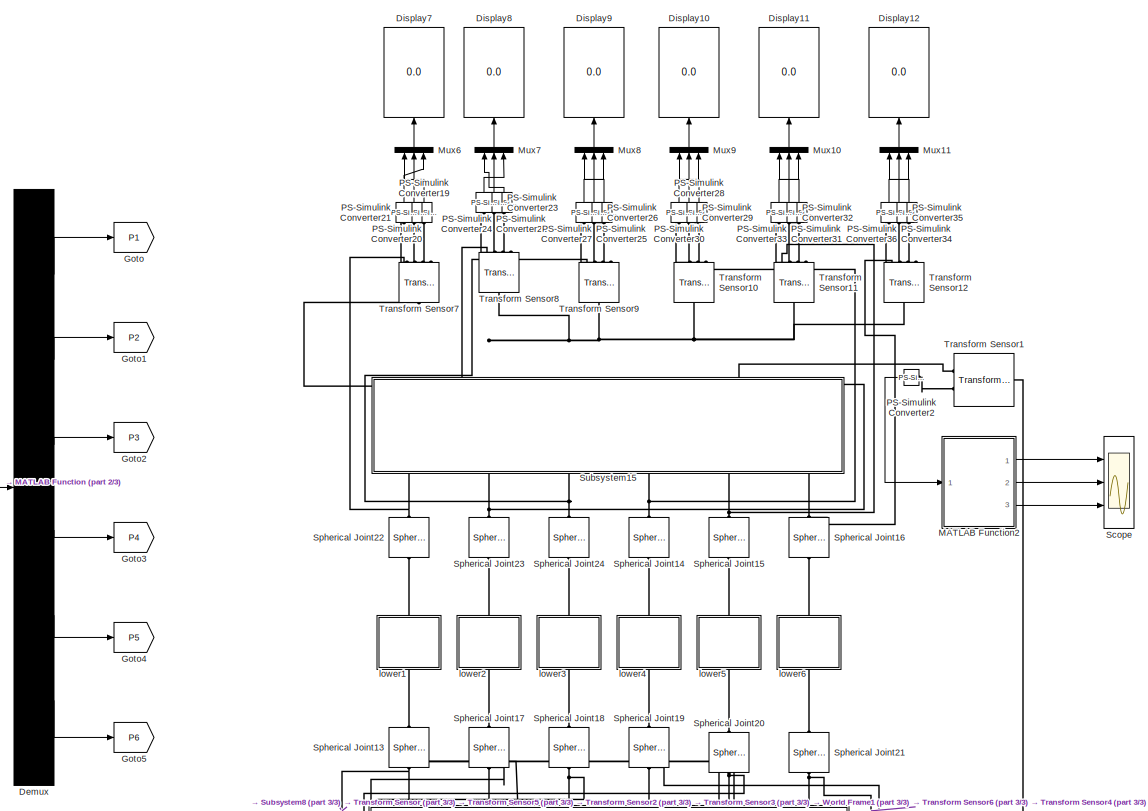
[diagram: root canvas - part 1/3, top right region]
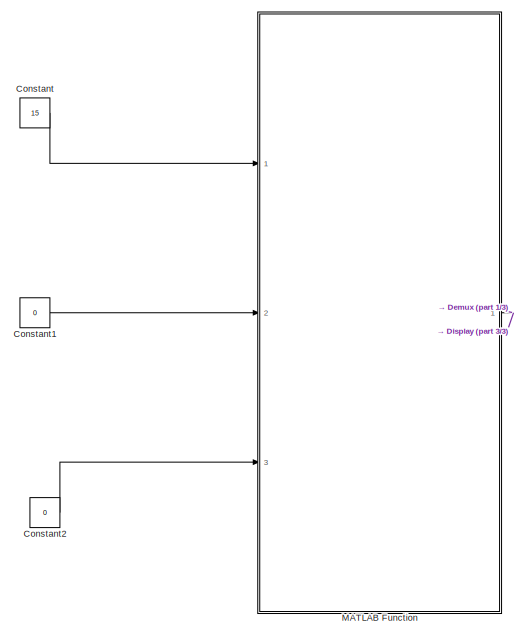
[diagram: root canvas - part 2/3, middle left region]
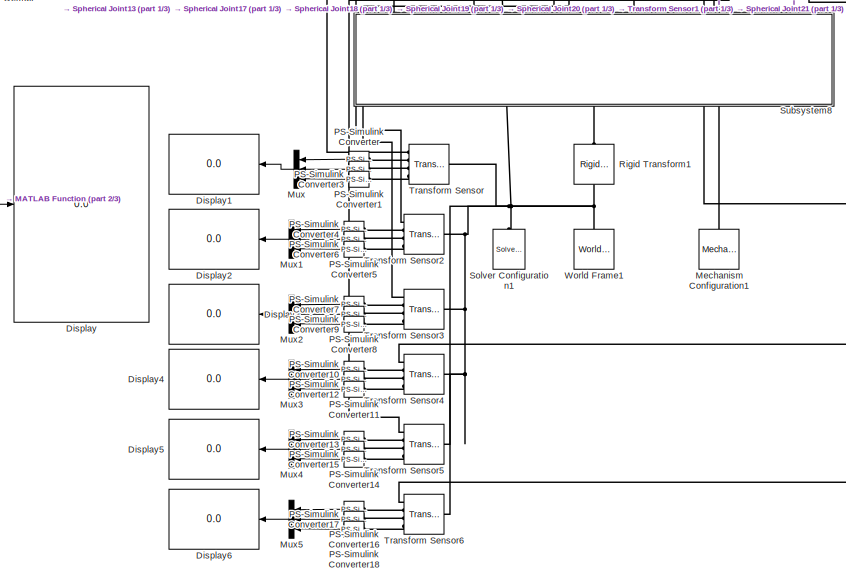
[diagram: root canvas - part 3/3, bottom center region]
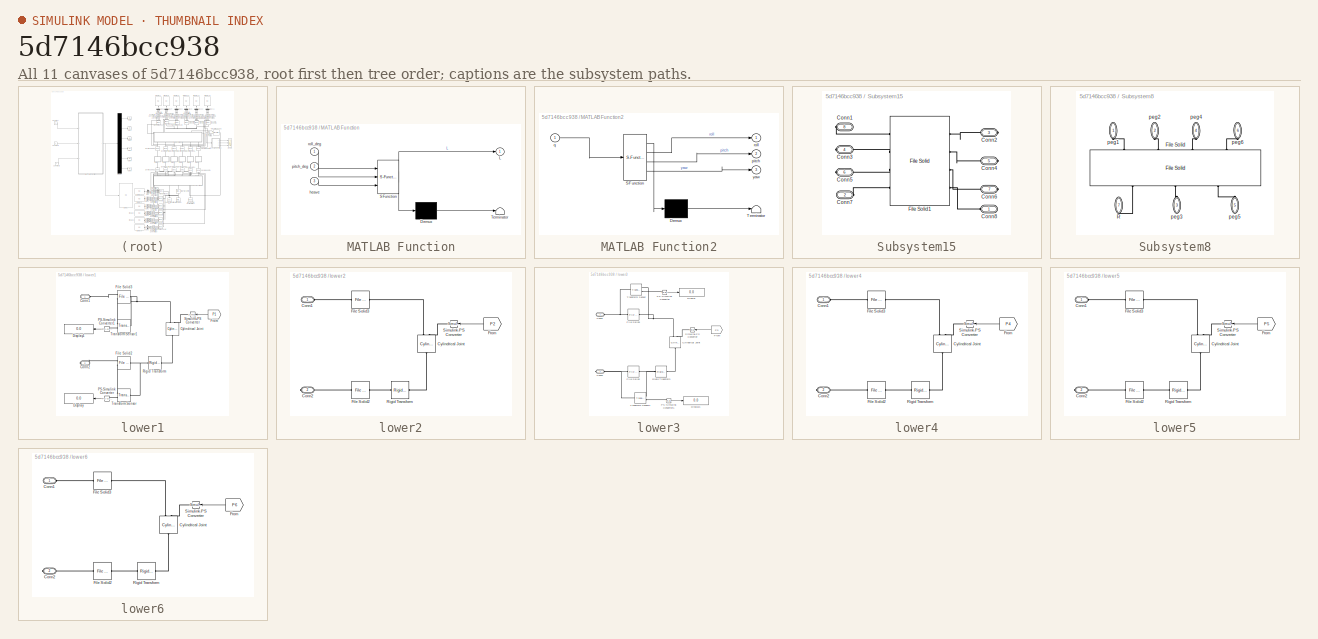
[diagram: thumbnail index - all 11 canvases of the model, root first then tree order]
MODEL slx_5d7146bcc938
KIND model
CONFIG AbsTol = 1e-3
CONFIG EnableMultiTasking = on
CONFIG FixedStep = auto
CONFIG MaxStep = auto
CONFIG MinStep = auto
CONFIG RelTol = 1e-3
CONFIG SampleTimeConstraint = Unconstrained
CONFIG SolverName = VariableStepAuto
CONFIG StartTime = 0.0
CONFIG StopTime = 10.0
BLOCK [Constant] Constant
  Value = 15
BLOCK [Constant] Constant1
  Value = 0
BLOCK [Constant] Constant2
  Value = 0
BLOCK [Demux] Demux
  Outputs = 6
  Ports = [1, 6]
BLOCK [Display] Display
  Decimation = 1
  Ports = [1]
BLOCK [Display] Display1
  Decimation = 3
  NameLocation = top
  Ports = [1]
BLOCK [Display] Display10
  Decimation = 3
  NameLocation = right
  Ports = [1]
BLOCK [Display] Display11
  Decimation = 3
  NameLocation = right
  Ports = [1]
BLOCK [Display] Display12
  Decimation = 3
  NameLocation = right
  Ports = [1]
BLOCK [Display] Display2
  Decimation = 3
  NameLocation = top
  Ports = [1]
BLOCK [Display] Display3
  Decimation = 3
  NameLocation = top
  Ports = [1]
BLOCK [Display] Display4
  Decimation = 3
  NameLocation = top
  Ports = [1]
BLOCK [Display] Display5
  Decimation = 3
  NameLocation = top
  Ports = [1]
BLOCK [Display] Display6
  Decimation = 3
  NameLocation = top
  Ports = [1]
BLOCK [Display] Display7
  Decimation = 3
  NameLocation = right
  Ports = [1]
BLOCK [Display] Display8
  Decimation = 3
  NameLocation = right
  Ports = [1]
BLOCK [Display] Display9
  Decimation = 3
  NameLocation = right
  Ports = [1]
BLOCK [Goto] Goto
  GotoTag = P1
  TagVisibility = global
BLOCK [Goto] Goto1
  GotoTag = P2
  TagVisibility = global
BLOCK [Goto] Goto2
  GotoTag = P3
  TagVisibility = global
BLOCK [Goto] Goto3
  GotoTag = P4
  TagVisibility = global
BLOCK [Goto] Goto4
  GotoTag = P5
  TagVisibility = global
BLOCK [Goto] Goto5
  GotoTag = P6
  TagVisibility = global
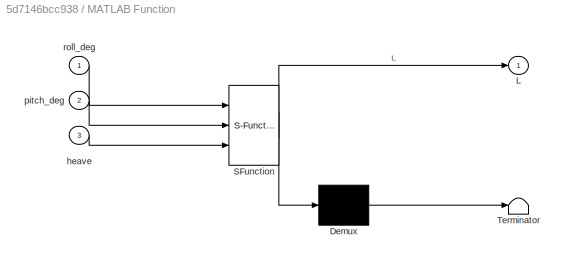
BLOCK [SubSystem] MATLAB Function
  ErrorFcn = Stateflow.Translate.translate
  PermitHierarchicalResolution = ExplicitOnly
  Ports = [3, 1]
  RequestExecContextInheritance = off
  SFBlockType = MATLAB Function
  TreatAsAtomicUnit = on
BLOCK [Demux] MATLAB Function/ Demux 
  Outputs = 1
  Ports = [1, 1]
BLOCK [S-Function] MATLAB Function/ SFunction 
  EnableBusSupport = on
  FunctionName = sf_sfun
  PortCounts = [3 2]
  Ports = [3, 2]
  SFcnIsStateOwnerBlock = off
  SFunctionDeploymentMode = off
  Tag = Stateflow S-Function 2
BLOCK [Terminator] MATLAB Function/ Terminator 
BLOCK [Outport] MATLAB Function/L
BLOCK [Inport] MATLAB Function/heave
  Port = 3
BLOCK [Inport] MATLAB Function/pitch_deg
  Port = 2
BLOCK [Inport] MATLAB Function/roll_deg
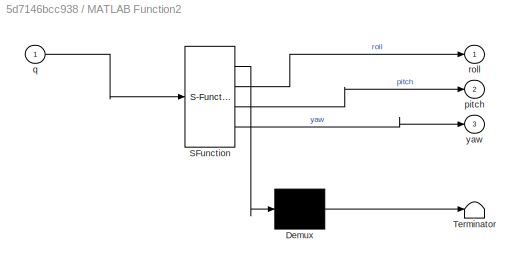
BLOCK [SubSystem] MATLAB Function2
  ErrorFcn = Stateflow.Translate.translate
  PermitHierarchicalResolution = ExplicitOnly
  Ports = [1, 3]
  RequestExecContextInheritance = off
  SFBlockType = MATLAB Function
  TreatAsAtomicUnit = on
BLOCK [Demux] MATLAB Function2/ Demux 
  Outputs = 1
  Ports = [1, 1]
BLOCK [S-Function] MATLAB Function2/ SFunction 
  EnableBusSupport = on
  FunctionName = sf_sfun
  PortCounts = [1 4]
  Ports = [1, 4]
  SFcnIsStateOwnerBlock = off
  SFunctionDeploymentMode = off
  Tag = Stateflow S-Function 3
BLOCK [Terminator] MATLAB Function2/ Terminator 
BLOCK [Outport] MATLAB Function2/pitch
  Port = 2
BLOCK [Inport] MATLAB Function2/q
BLOCK [Outport] MATLAB Function2/roll
BLOCK [Outport] MATLAB Function2/yaw
  Port = 3
BLOCK [Reference] Mechanism Configuration1  REF=sm_lib/Utilities/Mechanism
Configuration
  NameLocation = right
  Ports = [0, 0, 0, 0, 0, 0, 1]
  SourceBlock = sm_lib/Utilities/Mechanism\nConfiguration
  SourceProductBaseCode = MS
  SourceType = Mechanism\nConfiguration
BLOCK [Mux] Mux
  DisplayOption = bar
  Inputs = 3
  NameLocation = top
  Ports = [3, 1]
BLOCK [Mux] Mux1
  DisplayOption = bar
  Inputs = 3
  NameLocation = top
  Ports = [3, 1]
BLOCK [Mux] Mux10
  DisplayOption = bar
  Inputs = 3
  NameLocation = right
  Ports = [3, 1]
BLOCK [Mux] Mux11
  DisplayOption = bar
  Inputs = 3
  NameLocation = right
  Ports = [3, 1]
BLOCK [Mux] Mux2
  DisplayOption = bar
  Inputs = 3
  NameLocation = top
  Ports = [3, 1]
BLOCK [Mux] Mux3
  DisplayOption = bar
  Inputs = 3
  NameLocation = top
  Ports = [3, 1]
BLOCK [Mux] Mux4
  DisplayOption = bar
  Inputs = 3
  NameLocation = top
  Ports = [3, 1]
BLOCK [Mux] Mux5
  DisplayOption = bar
  Inputs = 3
  NameLocation = top
  Ports = [3, 1]
BLOCK [Mux] Mux6
  DisplayOption = bar
  Inputs = 3
  NameLocation = right
  Ports = [3, 1]
BLOCK [Mux] Mux7
  DisplayOption = bar
  Inputs = 3
  NameLocation = right
  Ports = [3, 1]
BLOCK [Mux] Mux8
  DisplayOption = bar
  Inputs = 3
  NameLocation = right
  Ports = [3, 1]
BLOCK [Mux] Mux9
  DisplayOption = bar
  Inputs = 3
  NameLocation = right
  Ports = [3, 1]
BLOCK [Reference] PS-Simulink Converter  REF=nesl_utility/PS-Simulink
Converter
  NameLocation = top
  Ports = [0, 1, 0, 0, 0, 1]
  SourceBlock = nesl_utility/PS-Simulink\nConverter
  SourceProductBaseCode = PW,SS
  SourceType = PS-Simulink\nConverter
BLOCK [Reference] PS-Simulink Converter1  REF=nesl_utility/PS-Simulink
Converter
  NameLocation = top
  Ports = [0, 1, 0, 0, 0, 1]
  SourceBlock = nesl_utility/PS-Simulink\nConverter
  SourceProductBaseCode = PW,SS
  SourceType = PS-Simulink\nConverter
BLOCK [Reference] PS-Simulink Converter10  REF=nesl_utility/PS-Simulink
Converter
  NameLocation = top
  Ports = [0, 1, 0, 0, 0, 1]
  SourceBlock = nesl_utility/PS-Simulink\nConverter
  SourceProductBaseCode = PW,SS
  SourceType = PS-Simulink\nConverter
BLOCK [Reference] PS-Simulink Converter11  REF=nesl_utility/PS-Simulink
Converter
  NameLocation = top
  Ports = [0, 1, 0, 0, 0, 1]
  SourceBlock = nesl_utility/PS-Simulink\nConverter
  SourceProductBaseCode = PW,SS
  SourceType = PS-Simulink\nConverter
BLOCK [Reference] PS-Simulink Converter12  REF=nesl_utility/PS-Simulink
Converter
  NameLocation = top
  Ports = [0, 1, 0, 0, 0, 1]
  SourceBlock = nesl_utility/PS-Simulink\nConverter
  SourceProductBaseCode = PW,SS
  SourceType = PS-Simulink\nConverter
BLOCK [Reference] PS-Simulink Converter13  REF=nesl_utility/PS-Simulink
Converter
  NameLocation = top
  Ports = [0, 1, 0, 0, 0, 1]
  SourceBlock = nesl_utility/PS-Simulink\nConverter
  SourceProductBaseCode = PW,SS
  SourceType = PS-Simulink\nConverter
BLOCK [Reference] PS-Simulink Converter14  REF=nesl_utility/PS-Simulink
Converter
  NameLocation = top
  Ports = [0, 1, 0, 0, 0, 1]
  SourceBlock = nesl_utility/PS-Simulink\nConverter
  SourceProductBaseCode = PW,SS
  SourceType = PS-Simulink\nConverter
BLOCK [Reference] PS-Simulink Converter15  REF=nesl_utility/PS-Simulink
Converter
  NameLocation = top
  Ports = [0, 1, 0, 0, 0, 1]
  SourceBlock = nesl_utility/PS-Simulink\nConverter
  SourceProductBaseCode = PW,SS
  SourceType = PS-Simulink\nConverter
BLOCK [Reference] PS-Simulink Converter16  REF=nesl_utility/PS-Simulink
Converter
  NameLocation = top
  Ports = [0, 1, 0, 0, 0, 1]
  SourceBlock = nesl_utility/PS-Simulink\nConverter
  SourceProductBaseCode = PW,SS
  SourceType = PS-Simulink\nConverter
BLOCK [Reference] PS-Simulink Converter17  REF=nesl_utility/PS-Simulink
Converter
  NameLocation = top
  Ports = [0, 1, 0, 0, 0, 1]
  SourceBlock = nesl_utility/PS-Simulink\nConverter
  SourceProductBaseCode = PW,SS
  SourceType = PS-Simulink\nConverter
BLOCK [Reference] PS-Simulink Converter18  REF=nesl_utility/PS-Simulink
Converter
  NameLocation = top
  Ports = [0, 1, 0, 0, 0, 1]
  SourceBlock = nesl_utility/PS-Simulink\nConverter
  SourceProductBaseCode = PW,SS
  SourceType = PS-Simulink\nConverter
BLOCK [Reference] PS-Simulink Converter19  REF=nesl_utility/PS-Simulink
Converter
  NameLocation = right
  Ports = [0, 1, 0, 0, 0, 1]
  SourceBlock = nesl_utility/PS-Simulink\nConverter
  SourceProductBaseCode = PW,SS
  SourceType = PS-Simulink\nConverter
BLOCK [Reference] PS-Simulink Converter2  REF=nesl_utility/PS-Simulink
Converter
  NameLocation = top
  Ports = [0, 1, 0, 0, 0, 1]
  SourceBlock = nesl_utility/PS-Simulink\nConverter
  SourceProductBaseCode = PW,SS
  SourceType = PS-Simulink\nConverter
BLOCK [Reference] PS-Simulink Converter20  REF=nesl_utility/PS-Simulink
Converter
  NameLocation = right
  Ports = [0, 1, 0, 0, 0, 1]
  SourceBlock = nesl_utility/PS-Simulink\nConverter
  SourceProductBaseCode = PW,SS
  SourceType = PS-Simulink\nConverter
BLOCK [Reference] PS-Simulink Converter21  REF=nesl_utility/PS-Simulink
Converter
  NameLocation = right
  Ports = [0, 1, 0, 0, 0, 1]
  SourceBlock = nesl_utility/PS-Simulink\nConverter
  SourceProductBaseCode = PW,SS
  SourceType = PS-Simulink\nConverter
BLOCK [Reference] PS-Simulink Converter22  REF=nesl_utility/PS-Simulink
Converter
  NameLocation = right
  Ports = [0, 1, 0, 0, 0, 1]
  SourceBlock = nesl_utility/PS-Simulink\nConverter
  SourceProductBaseCode = PW,SS
  SourceType = PS-Simulink\nConverter
BLOCK [Reference] PS-Simulink Converter23  REF=nesl_utility/PS-Simulink
Converter
  NameLocation = right
  Ports = [0, 1, 0, 0, 0, 1]
  SourceBlock = nesl_utility/PS-Simulink\nConverter
  SourceProductBaseCode = PW,SS
  SourceType = PS-Simulink\nConverter
BLOCK [Reference] PS-Simulink Converter24  REF=nesl_utility/PS-Simulink
Converter
  NameLocation = right
  Ports = [0, 1, 0, 0, 0, 1]
  SourceBlock = nesl_utility/PS-Simulink\nConverter
  SourceProductBaseCode = PW,SS
  SourceType = PS-Simulink\nConverter
BLOCK [Reference] PS-Simulink Converter25  REF=nesl_utility/PS-Simulink
Converter
  NameLocation = right
  Ports = [0, 1, 0, 0, 0, 1]
  SourceBlock = nesl_utility/PS-Simulink\nConverter
  SourceProductBaseCode = PW,SS
  SourceType = PS-Simulink\nConverter
BLOCK [Reference] PS-Simulink Converter26  REF=nesl_utility/PS-Simulink
Converter
  NameLocation = right
  Ports = [0, 1, 0, 0, 0, 1]
  SourceBlock = nesl_utility/PS-Simulink\nConverter
  SourceProductBaseCode = PW,SS
  SourceType = PS-Simulink\nConverter
BLOCK [Reference] PS-Simulink Converter27  REF=nesl_utility/PS-Simulink
Converter
  NameLocation = right
  Ports = [0, 1, 0, 0, 0, 1]
  SourceBlock = nesl_utility/PS-Simulink\nConverter
  SourceProductBaseCode = PW,SS
  SourceType = PS-Simulink\nConverter
BLOCK [Reference] PS-Simulink Converter28  REF=nesl_utility/PS-Simulink
Converter
  NameLocation = right
  Ports = [0, 1, 0, 0, 0, 1]
  SourceBlock = nesl_utility/PS-Simulink\nConverter
  SourceProductBaseCode = PW,SS
  SourceType = PS-Simulink\nConverter
BLOCK [Reference] PS-Simulink Converter29  REF=nesl_utility/PS-Simulink
Converter
  NameLocation = right
  Ports = [0, 1, 0, 0, 0, 1]
  SourceBlock = nesl_utility/PS-Simulink\nConverter
  SourceProductBaseCode = PW,SS
  SourceType = PS-Simulink\nConverter
BLOCK [Reference] PS-Simulink Converter3  REF=nesl_utility/PS-Simulink
Converter
  NameLocation = top
  Ports = [0, 1, 0, 0, 0, 1]
  SourceBlock = nesl_utility/PS-Simulink\nConverter
  SourceProductBaseCode = PW,SS
  SourceType = PS-Simulink\nConverter
BLOCK [Reference] PS-Simulink Converter30  REF=nesl_utility/PS-Simulink
Converter
  NameLocation = right
  Ports = [0, 1, 0, 0, 0, 1]
  SourceBlock = nesl_utility/PS-Simulink\nConverter
  SourceProductBaseCode = PW,SS
  SourceType = PS-Simulink\nConverter
BLOCK [Reference] PS-Simulink Converter31  REF=nesl_utility/PS-Simulink
Converter
  NameLocation = right
  Ports = [0, 1, 0, 0, 0, 1]
  SourceBlock = nesl_utility/PS-Simulink\nConverter
  SourceProductBaseCode = PW,SS
  SourceType = PS-Simulink\nConverter
BLOCK [Reference] PS-Simulink Converter32  REF=nesl_utility/PS-Simulink
Converter
  NameLocation = right
  Ports = [0, 1, 0, 0, 0, 1]
  SourceBlock = nesl_utility/PS-Simulink\nConverter
  SourceProductBaseCode = PW,SS
  SourceType = PS-Simulink\nConverter
BLOCK [Reference] PS-Simulink Converter33  REF=nesl_utility/PS-Simulink
Converter
  NameLocation = right
  Ports = [0, 1, 0, 0, 0, 1]
  SourceBlock = nesl_utility/PS-Simulink\nConverter
  SourceProductBaseCode = PW,SS
  SourceType = PS-Simulink\nConverter
BLOCK [Reference] PS-Simulink Converter34  REF=nesl_utility/PS-Simulink
Converter
  NameLocation = right
  Ports = [0, 1, 0, 0, 0, 1]
  SourceBlock = nesl_utility/PS-Simulink\nConverter
  SourceProductBaseCode = PW,SS
  SourceType = PS-Simulink\nConverter
BLOCK [Reference] PS-Simulink Converter35  REF=nesl_utility/PS-Simulink
Converter
  NameLocation = right
  Ports = [0, 1, 0, 0, 0, 1]
  SourceBlock = nesl_utility/PS-Simulink\nConverter
  SourceProductBaseCode = PW,SS
  SourceType = PS-Simulink\nConverter
BLOCK [Reference] PS-Simulink Converter36  REF=nesl_utility/PS-Simulink
Converter
  NameLocation = right
  Ports = [0, 1, 0, 0, 0, 1]
  SourceBlock = nesl_utility/PS-Simulink\nConverter
  SourceProductBaseCode = PW,SS
  SourceType = PS-Simulink\nConverter
BLOCK [Reference] PS-Simulink Converter4  REF=nesl_utility/PS-Simulink
Converter
  NameLocation = top
  Ports = [0, 1, 0, 0, 0, 1]
  SourceBlock = nesl_utility/PS-Simulink\nConverter
  SourceProductBaseCode = PW,SS
  SourceType = PS-Simulink\nConverter
BLOCK [Reference] PS-Simulink Converter5  REF=nesl_utility/PS-Simulink
Converter
  NameLocation = top
  Ports = [0, 1, 0, 0, 0, 1]
  SourceBlock = nesl_utility/PS-Simulink\nConverter
  SourceProductBaseCode = PW,SS
  SourceType = PS-Simulink\nConverter
BLOCK [Reference] PS-Simulink Converter6  REF=nesl_utility/PS-Simulink
Converter
  NameLocation = top
  Ports = [0, 1, 0, 0, 0, 1]
  SourceBlock = nesl_utility/PS-Simulink\nConverter
  SourceProductBaseCode = PW,SS
  SourceType = PS-Simulink\nConverter
BLOCK [Reference] PS-Simulink Converter7  REF=nesl_utility/PS-Simulink
Converter
  NameLocation = top
  Ports = [0, 1, 0, 0, 0, 1]
  SourceBlock = nesl_utility/PS-Simulink\nConverter
  SourceProductBaseCode = PW,SS
  SourceType = PS-Simulink\nConverter
BLOCK [Reference] PS-Simulink Converter8  REF=nesl_utility/PS-Simulink
Converter
  NameLocation = top
  Ports = [0, 1, 0, 0, 0, 1]
  SourceBlock = nesl_utility/PS-Simulink\nConverter
  SourceProductBaseCode = PW,SS
  SourceType = PS-Simulink\nConverter
BLOCK [Reference] PS-Simulink Converter9  REF=nesl_utility/PS-Simulink
Converter
  NameLocation = top
  Ports = [0, 1, 0, 0, 0, 1]
  SourceBlock = nesl_utility/PS-Simulink\nConverter
  SourceProductBaseCode = PW,SS
  SourceType = PS-Simulink\nConverter
BLOCK [Reference] Rigid Transform1  REF=sm_lib/Frames and
Transforms/Rigid
Transform
  NameLocation = right
  Ports = [0, 0, 0, 0, 0, 1, 1]
  SourceBlock = sm_lib/Frames and\nTransforms/Rigid\nTransform
  SourceProductBaseCode = MS
  SourceType = Rigid\nTransform
BLOCK [Scope] Scope
  Floating = off
  NumInputPorts = 3
  Ports = [3]
  ScopeSpecificationString = Simulink.scopes.TimeScopeBlockCfg('CurrentConfiguration', extmgr.ConfigurationSet(extmgr.Configuration('Core','General UI',true),extmgr.Configuration('Core','Source UI',true),extmgr.Configuration('Sources','WiredSimulink',true),extmgr.Configuration('Visuals','Time Domain',true,'SerializedDisplays',{struct('MinYLimReal','-18.36374','MaxYLimReal','18.88767','YLabelReal','','MinYLimMag','0.00000','Ma...<+2691ch>
BLOCK [Reference] Solver Configuration1  REF=nesl_utility/Solver
Configuration
  NameLocation = right
  Ports = [0, 0, 0, 0, 0, 0, 1]
  SourceBlock = nesl_utility/Solver\nConfiguration
  SourceProductBaseCode = PW,SS
  SourceType = Solver\nConfiguration
BLOCK [Reference] Spherical Joint13  REF=sm_lib/Joints/Spherical
Joint
  NameLocation = right
  Ports = [0, 0, 0, 0, 0, 1, 1]
  SourceBlock = sm_lib/Joints/Spherical\nJoint
  SourceProductBaseCode = MS
  SourceType = Spherical\nJoint
BLOCK [Reference] Spherical Joint14  REF=sm_lib/Joints/Spherical
Joint
  NameLocation = left
  Ports = [0, 0, 0, 0, 0, 1, 1]
  SourceBlock = sm_lib/Joints/Spherical\nJoint
  SourceProductBaseCode = MS
  SourceType = Spherical\nJoint
BLOCK [Reference] Spherical Joint15  REF=sm_lib/Joints/Spherical
Joint
  NameLocation = left
  Ports = [0, 0, 0, 0, 0, 1, 1]
  SourceBlock = sm_lib/Joints/Spherical\nJoint
  SourceProductBaseCode = MS
  SourceType = Spherical\nJoint
BLOCK [Reference] Spherical Joint16  REF=sm_lib/Joints/Spherical
Joint
  NameLocation = left
  Ports = [0, 0, 0, 0, 0, 1, 1]
  SourceBlock = sm_lib/Joints/Spherical\nJoint
  SourceProductBaseCode = MS
  SourceType = Spherical\nJoint
BLOCK [Reference] Spherical Joint17  REF=sm_lib/Joints/Spherical
Joint
  NameLocation = right
  Ports = [0, 0, 0, 0, 0, 1, 1]
  SourceBlock = sm_lib/Joints/Spherical\nJoint
  SourceProductBaseCode = MS
  SourceType = Spherical\nJoint
BLOCK [Reference] Spherical Joint18  REF=sm_lib/Joints/Spherical
Joint
  NameLocation = right
  Ports = [0, 0, 0, 0, 0, 1, 1]
  SourceBlock = sm_lib/Joints/Spherical\nJoint
  SourceProductBaseCode = MS
  SourceType = Spherical\nJoint
BLOCK [Reference] Spherical Joint19  REF=sm_lib/Joints/Spherical
Joint
  NameLocation = right
  Ports = [0, 0, 0, 0, 0, 1, 1]
  SourceBlock = sm_lib/Joints/Spherical\nJoint
  SourceProductBaseCode = MS
  SourceType = Spherical\nJoint
BLOCK [Reference] Spherical Joint20  REF=sm_lib/Joints/Spherical
Joint
  NameLocation = right
  Ports = [0, 0, 0, 0, 0, 1, 1]
  SourceBlock = sm_lib/Joints/Spherical\nJoint
  SourceProductBaseCode = MS
  SourceType = Spherical\nJoint
BLOCK [Reference] Spherical Joint21  REF=sm_lib/Joints/Spherical
Joint
  NameLocation = right
  Ports = [0, 0, 0, 0, 0, 1, 1]
  SourceBlock = sm_lib/Joints/Spherical\nJoint
  SourceProductBaseCode = MS
  SourceType = Spherical\nJoint
BLOCK [Reference] Spherical Joint22  REF=sm_lib/Joints/Spherical
Joint
  NameLocation = left
  Ports = [0, 0, 0, 0, 0, 1, 1]
  SourceBlock = sm_lib/Joints/Spherical\nJoint
  SourceProductBaseCode = MS
  SourceType = Spherical\nJoint
BLOCK [Reference] Spherical Joint23  REF=sm_lib/Joints/Spherical
Joint
  NameLocation = left
  Ports = [0, 0, 0, 0, 0, 1, 1]
  SourceBlock = sm_lib/Joints/Spherical\nJoint
  SourceProductBaseCode = MS
  SourceType = Spherical\nJoint
BLOCK [Reference] Spherical Joint24  REF=sm_lib/Joints/Spherical
Joint
  NameLocation = left
  Ports = [0, 0, 0, 0, 0, 1, 1]
  SourceBlock = sm_lib/Joints/Spherical\nJoint
  SourceProductBaseCode = MS
  SourceType = Spherical\nJoint
BLOCK [SubSystem] Subsystem15
  PortSchema = {"entries":[{"content":{"sides":[{"content":{"connectorIds":[]},"type":"ConnectorPlacement.EquallySpacedRectSide","uuid":"df699bf8-f60d-48b1-8ca4-c953a6508a6d"},{"content":{"connectorIds":[],"side":"RIGHT"},"type":"ConnectorPlacement.EquallySpacedRectSide","uuid":"dc4f0c16-f86f-48aa-be45-aceeea259588"},{"content":{"connectorIds":["LConn1","LConn2"],"side":"TOP"},"type":"ConnectorPlacement.EquallyS...<+443ch>
  Ports = [0, 0, 0, 0, 0, 2, 6]
  RequestExecContextInheritance = off
BLOCK [PMIOPort] Subsystem15/Conn1
  Port = 8
  Side = Right
BLOCK [PMIOPort] Subsystem15/Conn2
  Port = 3
  Side = Right
BLOCK [PMIOPort] Subsystem15/Conn3
  Port = 4
  Side = Right
BLOCK [PMIOPort] Subsystem15/Conn4
  Port = 5
  Side = Right
BLOCK [PMIOPort] Subsystem15/Conn5
  Port = 6
  Side = Right
BLOCK [PMIOPort] Subsystem15/Conn6
  Port = 7
  Side = Right
BLOCK [PMIOPort] Subsystem15/Conn7
  NameLocation = top
  Port = 2
  Side = Left
BLOCK [PMIOPort] Subsystem15/Conn8
  Side = Left
BLOCK [Reference] Subsystem15/File Solid1  REF=sm_lib/Body Elements/File Solid
  Ports = [0, 0, 0, 0, 0, 4, 4]
  SourceBlock = sm_lib/Body Elements/File Solid
  SourceProductBaseCode = MS
  SourceType = File Solid
BLOCK [SubSystem] Subsystem8
  Ports = [0, 0, 0, 0, 0, 6, 1]
  RequestExecContextInheritance = off
BLOCK [Reference] Subsystem8/File Solid  REF=sm_lib/Body Elements/File Solid
  NameLocation = left
  Ports = [0, 0, 0, 0, 0, 4, 3]
  SourceBlock = sm_lib/Body Elements/File Solid
  SourceProductBaseCode = MS
  SourceType = File Solid
BLOCK [PMIOPort] Subsystem8/R
  NameLocation = left
  Port = 7
  Side = Right
BLOCK [PMIOPort] Subsystem8/peg1
  NameLocation = left
  Side = Left
BLOCK [PMIOPort] Subsystem8/peg2
  NameLocation = left
  Port = 2
  Side = Left
BLOCK [PMIOPort] Subsystem8/peg3
  NameLocation = left
  Port = 3
  Side = Left
BLOCK [PMIOPort] Subsystem8/peg4
  NameLocation = left
  Port = 4
  Side = Left
BLOCK [PMIOPort] Subsystem8/peg5
  NameLocation = left
  Port = 5
  Side = Left
BLOCK [PMIOPort] Subsystem8/peg6
  NameLocation = left
  Port = 6
  Side = Left
BLOCK [Reference] Transform Sensor  REF=sm_lib/Frames and
Transforms/Transform
Sensor
  NameLocation = top
  Ports = [0, 0, 0, 0, 0, 1, 4]
  SourceBlock = sm_lib/Frames and\nTransforms/Transform\nSensor
  SourceProductBaseCode = MS
  SourceType = Transform\nSensor
BLOCK [Reference] Transform Sensor1  REF=sm_lib/Frames and
Transforms/Transform
Sensor
  NameLocation = top
  Ports = [0, 0, 0, 0, 0, 1, 2]
  SourceBlock = sm_lib/Frames and\nTransforms/Transform\nSensor
  SourceProductBaseCode = MS
  SourceType = Transform\nSensor
BLOCK [Reference] Transform Sensor10  REF=sm_lib/Frames and
Transforms/Transform
Sensor
  NameLocation = right
  Ports = [0, 0, 0, 0, 0, 1, 4]
  SourceBlock = sm_lib/Frames and\nTransforms/Transform\nSensor
  SourceProductBaseCode = MS
  SourceType = Transform\nSensor
BLOCK [Reference] Transform Sensor11  REF=sm_lib/Frames and
Transforms/Transform
Sensor
  NameLocation = right
  Ports = [0, 0, 0, 0, 0, 1, 4]
  SourceBlock = sm_lib/Frames and\nTransforms/Transform\nSensor
  SourceProductBaseCode = MS
  SourceType = Transform\nSensor
BLOCK [Reference] Transform Sensor12  REF=sm_lib/Frames and
Transforms/Transform
Sensor
  NameLocation = right
  Ports = [0, 0, 0, 0, 0, 1, 4]
  SourceBlock = sm_lib/Frames and\nTransforms/Transform\nSensor
  SourceProductBaseCode = MS
  SourceType = Transform\nSensor
BLOCK [Reference] Transform Sensor2  REF=sm_lib/Frames and
Transforms/Transform
Sensor
  NameLocation = top
  Ports = [0, 0, 0, 0, 0, 1, 4]
  SourceBlock = sm_lib/Frames and\nTransforms/Transform\nSensor
  SourceProductBaseCode = MS
  SourceType = Transform\nSensor
BLOCK [Reference] Transform Sensor3  REF=sm_lib/Frames and
Transforms/Transform
Sensor
  NameLocation = top
  Ports = [0, 0, 0, 0, 0, 1, 4]
  SourceBlock = sm_lib/Frames and\nTransforms/Transform\nSensor
  SourceProductBaseCode = MS
  SourceType = Transform\nSensor
BLOCK [Reference] Transform Sensor4  REF=sm_lib/Frames and
Transforms/Transform
Sensor
  NameLocation = top
  Ports = [0, 0, 0, 0, 0, 1, 4]
  SourceBlock = sm_lib/Frames and\nTransforms/Transform\nSensor
  SourceProductBaseCode = MS
  SourceType = Transform\nSensor
BLOCK [Reference] Transform Sensor5  REF=sm_lib/Frames and
Transforms/Transform
Sensor
  NameLocation = top
  Ports = [0, 0, 0, 0, 0, 1, 4]
  SourceBlock = sm_lib/Frames and\nTransforms/Transform\nSensor
  SourceProductBaseCode = MS
  SourceType = Transform\nSensor
BLOCK [Reference] Transform Sensor6  REF=sm_lib/Frames and
Transforms/Transform
Sensor
  NameLocation = top
  Ports = [0, 0, 0, 0, 0, 1, 4]
  SourceBlock = sm_lib/Frames and\nTransforms/Transform\nSensor
  SourceProductBaseCode = MS
  SourceType = Transform\nSensor
BLOCK [Reference] Transform Sensor7  REF=sm_lib/Frames and
Transforms/Transform
Sensor
  NameLocation = right
  Ports = [0, 0, 0, 0, 0, 1, 4]
  SourceBlock = sm_lib/Frames and\nTransforms/Transform\nSensor
  SourceProductBaseCode = MS
  SourceType = Transform\nSensor
BLOCK [Reference] Transform Sensor8  REF=sm_lib/Frames and
Transforms/Transform
Sensor
  NameLocation = right
  Ports = [0, 0, 0, 0, 0, 1, 4]
  SourceBlock = sm_lib/Frames and\nTransforms/Transform\nSensor
  SourceProductBaseCode = MS
  SourceType = Transform\nSensor
BLOCK [Reference] Transform Sensor9  REF=sm_lib/Frames and
Transforms/Transform
Sensor
  NameLocation = right
  Ports = [0, 0, 0, 0, 0, 1, 4]
  SourceBlock = sm_lib/Frames and\nTransforms/Transform\nSensor
  SourceProductBaseCode = MS
  SourceType = Transform\nSensor
BLOCK [Reference] World Frame1  REF=sm_lib/Frames and
Transforms/World Frame
  NameLocation = right
  Ports = [0, 0, 0, 0, 0, 0, 1]
  SourceBlock = sm_lib/Frames and\nTransforms/World Frame
  SourceProductBaseCode = MS
  SourceType = World Frame
BLOCK [SubSystem] lower1
  NameLocation = right
  Ports = [0, 0, 0, 0, 0, 1, 1]
  RequestExecContextInheritance = off
BLOCK [PMIOPort] lower1/Conn1
  Side = Left
BLOCK [PMIOPort] lower1/Conn2
  NameLocation = top
  Port = 2
  Side = Right
BLOCK [Reference] lower1/Cylindrical Joint  REF=sm_lib/Joints/Cylindrical
Joint
  NameLocation = left
  Ports = [0, 0, 0, 0, 0, 2, 1]
  SourceBlock = sm_lib/Joints/Cylindrical\nJoint
  SourceProductBaseCode = MS
  SourceType = Cylindrical\nJoint
BLOCK [Display] lower1/Display
  Decimation = 1
  NameLocation = top
  Ports = [1]
BLOCK [Display] lower1/Display1
  Decimation = 1
  NameLocation = top
  Ports = [1]
BLOCK [Reference] lower1/File Solid2  REF=sm_lib/Body Elements/File Solid
  Ports = [0, 0, 0, 0, 0, 2, 1]
  SourceBlock = sm_lib/Body Elements/File Solid
  SourceProductBaseCode = MS
  SourceType = File Solid
BLOCK [Reference] lower1/File Solid3  REF=sm_lib/Body Elements/File Solid
  Ports = [0, 0, 0, 0, 0, 2, 1]
  SourceBlock = sm_lib/Body Elements/File Solid
  SourceProductBaseCode = MS
  SourceType = File Solid
BLOCK [From] lower1/From
  GotoTag = P1
  NameLocation = top
  TagVisibility = global
BLOCK [Reference] lower1/PS-Simulink Converter  REF=nesl_utility/PS-Simulink
Converter
  NameLocation = top
  Ports = [0, 1, 0, 0, 0, 1]
  SourceBlock = nesl_utility/PS-Simulink\nConverter
  SourceProductBaseCode = PW,SS
  SourceType = PS-Simulink\nConverter
BLOCK [Reference] lower1/PS-Simulink Converter1  REF=nesl_utility/PS-Simulink
Converter
  NameLocation = top
  Ports = [0, 1, 0, 0, 0, 1]
  SourceBlock = nesl_utility/PS-Simulink\nConverter
  SourceProductBaseCode = PW,SS
  SourceType = PS-Simulink\nConverter
BLOCK [Reference] lower1/Rigid Transform  REF=sm_lib/Frames and
Transforms/Rigid
Transform
  NameLocation = top
  Ports = [0, 0, 0, 0, 0, 1, 1]
  SourceBlock = sm_lib/Frames and\nTransforms/Rigid\nTransform
  SourceProductBaseCode = MS
  SourceType = Rigid\nTransform
BLOCK [Reference] lower1/Simulink-PS Converter  REF=nesl_utility/Simulink-PS
Converter
  NameLocation = top
  Ports = [1, 0, 0, 0, 0, 0, 1]
  SourceBlock = nesl_utility/Simulink-PS\nConverter
  SourceProductBaseCode = PW,SS
  SourceType = Simulink-PS\nConverter
BLOCK [Reference] lower1/Transform Sensor  REF=sm_lib/Frames and
Transforms/Transform
Sensor
  NameLocation = top
  Ports = [0, 0, 0, 0, 0, 1, 2]
  SourceBlock = sm_lib/Frames and\nTransforms/Transform\nSensor
  SourceProductBaseCode = MS
  SourceType = Transform\nSensor
BLOCK [Reference] lower1/Transform Sensor1  REF=sm_lib/Frames and
Transforms/Transform
Sensor
  NameLocation = top
  Ports = [0, 0, 0, 0, 0, 1, 2]
  SourceBlock = sm_lib/Frames and\nTransforms/Transform\nSensor
  SourceProductBaseCode = MS
  SourceType = Transform\nSensor
BLOCK [SubSystem] lower2
  NameLocation = right
  Ports = [0, 0, 0, 0, 0, 1, 1]
  RequestExecContextInheritance = off
BLOCK [PMIOPort] lower2/Conn1
  Side = Left
BLOCK [PMIOPort] lower2/Conn2
  NameLocation = top
  Port = 2
  Side = Right
BLOCK [Reference] lower2/Cylindrical Joint  REF=sm_lib/Joints/Cylindrical
Joint
  NameLocation = left
  Ports = [0, 0, 0, 0, 0, 2, 1]
  SourceBlock = sm_lib/Joints/Cylindrical\nJoint
  SourceProductBaseCode = MS
  SourceType = Cylindrical\nJoint
BLOCK [Reference] lower2/File Solid2  REF=sm_lib/Body Elements/File Solid
  Ports = [0, 0, 0, 0, 0, 1, 1]
  SourceBlock = sm_lib/Body Elements/File Solid
  SourceProductBaseCode = MS
  SourceType = File Solid
BLOCK [Reference] lower2/File Solid3  REF=sm_lib/Body Elements/File Solid
  Ports = [0, 0, 0, 0, 0, 1, 1]
  SourceBlock = sm_lib/Body Elements/File Solid
  SourceProductBaseCode = MS
  SourceType = File Solid
BLOCK [From] lower2/From
  GotoTag = P2
  NameLocation = top
  TagVisibility = global
BLOCK [Reference] lower2/Rigid Transform  REF=sm_lib/Frames and
Transforms/Rigid
Transform
  NameLocation = top
  Ports = [0, 0, 0, 0, 0, 1, 1]
  SourceBlock = sm_lib/Frames and\nTransforms/Rigid\nTransform
  SourceProductBaseCode = MS
  SourceType = Rigid\nTransform
BLOCK [Reference] lower2/Simulink-PS Converter  REF=nesl_utility/Simulink-PS
Converter
  NameLocation = top
  Ports = [1, 0, 0, 0, 0, 0, 1]
  SourceBlock = nesl_utility/Simulink-PS\nConverter
  SourceProductBaseCode = PW,SS
  SourceType = Simulink-PS\nConverter
BLOCK [SubSystem] lower3
  NameLocation = right
  Ports = [0, 0, 0, 0, 0, 1, 1]
  RequestExecContextInheritance = off
BLOCK [PMIOPort] lower3/Conn1
  Side = Left
BLOCK [PMIOPort] lower3/Conn2
  NameLocation = top
  Port = 2
  Side = Right
BLOCK [Reference] lower3/Cylindrical Joint  REF=sm_lib/Joints/Cylindrical
Joint
  NameLocation = left
  Ports = [0, 0, 0, 0, 0, 2, 1]
  SourceBlock = sm_lib/Joints/Cylindrical\nJoint
  SourceProductBaseCode = MS
  SourceType = Cylindrical\nJoint
BLOCK [Display] lower3/Display
  Decimation = 1
  Ports = [1]
BLOCK [Display] lower3/Display1
  Decimation = 1
  Ports = [1]
BLOCK [Reference] lower3/File Solid2  REF=sm_lib/Body Elements/File Solid
  Ports = [0, 0, 0, 0, 0, 1, 1]
  SourceBlock = sm_lib/Body Elements/File Solid
  SourceProductBaseCode = MS
  SourceType = File Solid
BLOCK [Reference] lower3/File Solid3  REF=sm_lib/Body Elements/File Solid
  Ports = [0, 0, 0, 0, 0, 1, 1]
  SourceBlock = sm_lib/Body Elements/File Solid
  SourceProductBaseCode = MS
  SourceType = File Solid
BLOCK [From] lower3/From
  GotoTag = P3
  NameLocation = top
  TagVisibility = global
BLOCK [Reference] lower3/PS-Simulink Converter  REF=nesl_utility/PS-Simulink
Converter
  Ports = [0, 1, 0, 0, 0, 1]
  SourceBlock = nesl_utility/PS-Simulink\nConverter
  SourceProductBaseCode = PW,SS
  SourceType = PS-Simulink\nConverter
BLOCK [Reference] lower3/PS-Simulink Converter1  REF=nesl_utility/PS-Simulink
Converter
  Ports = [0, 1, 0, 0, 0, 1]
  SourceBlock = nesl_utility/PS-Simulink\nConverter
  SourceProductBaseCode = PW,SS
  SourceType = PS-Simulink\nConverter
BLOCK [Reference] lower3/Rigid Transform  REF=sm_lib/Frames and
Transforms/Rigid
Transform
  NameLocation = top
  Ports = [0, 0, 0, 0, 0, 1, 1]
  SourceBlock = sm_lib/Frames and\nTransforms/Rigid\nTransform
  SourceProductBaseCode = MS
  SourceType = Rigid\nTransform
BLOCK [Reference] lower3/Simulink-PS Converter  REF=nesl_utility/Simulink-PS
Converter
  NameLocation = top
  Ports = [1, 0, 0, 0, 0, 0, 1]
  SourceBlock = nesl_utility/Simulink-PS\nConverter
  SourceProductBaseCode = PW,SS
  SourceType = Simulink-PS\nConverter
BLOCK [Reference] lower3/Transform Sensor  REF=sm_lib/Frames and
Transforms/Transform
Sensor
  Ports = [0, 0, 0, 0, 0, 1, 2]
  SourceBlock = sm_lib/Frames and\nTransforms/Transform\nSensor
  SourceProductBaseCode = MS
  SourceType = Transform\nSensor
BLOCK [Reference] lower3/Transform Sensor1  REF=sm_lib/Frames and
Transforms/Transform
Sensor
  Ports = [0, 0, 0, 0, 0, 1, 2]
  SourceBlock = sm_lib/Frames and\nTransforms/Transform\nSensor
  SourceProductBaseCode = MS
  SourceType = Transform\nSensor
BLOCK [SubSystem] lower4
  NameLocation = right
  Ports = [0, 0, 0, 0, 0, 1, 1]
  RequestExecContextInheritance = off
BLOCK [PMIOPort] lower4/Conn1
  Side = Left
BLOCK [PMIOPort] lower4/Conn2
  NameLocation = top
  Port = 2
  Side = Right
BLOCK [Reference] lower4/Cylindrical Joint  REF=sm_lib/Joints/Cylindrical
Joint
  NameLocation = left
  Ports = [0, 0, 0, 0, 0, 2, 1]
  SourceBlock = sm_lib/Joints/Cylindrical\nJoint
  SourceProductBaseCode = MS
  SourceType = Cylindrical\nJoint
BLOCK [Reference] lower4/File Solid2  REF=sm_lib/Body Elements/File Solid
  Ports = [0, 0, 0, 0, 0, 1, 1]
  SourceBlock = sm_lib/Body Elements/File Solid
  SourceProductBaseCode = MS
  SourceType = File Solid
BLOCK [Reference] lower4/File Solid3  REF=sm_lib/Body Elements/File Solid
  Ports = [0, 0, 0, 0, 0, 1, 1]
  SourceBlock = sm_lib/Body Elements/File Solid
  SourceProductBaseCode = MS
  SourceType = File Solid
BLOCK [From] lower4/From
  GotoTag = P4
  NameLocation = top
  TagVisibility = global
BLOCK [Reference] lower4/Rigid Transform  REF=sm_lib/Frames and
Transforms/Rigid
Transform
  NameLocation = top
  Ports = [0, 0, 0, 0, 0, 1, 1]
  SourceBlock = sm_lib/Frames and\nTransforms/Rigid\nTransform
  SourceProductBaseCode = MS
  SourceType = Rigid\nTransform
BLOCK [Reference] lower4/Simulink-PS Converter  REF=nesl_utility/Simulink-PS
Converter
  NameLocation = top
  Ports = [1, 0, 0, 0, 0, 0, 1]
  SourceBlock = nesl_utility/Simulink-PS\nConverter
  SourceProductBaseCode = PW,SS
  SourceType = Simulink-PS\nConverter
BLOCK [SubSystem] lower5
  NameLocation = right
  Ports = [0, 0, 0, 0, 0, 1, 1]
  RequestExecContextInheritance = off
BLOCK [PMIOPort] lower5/Conn1
  Side = Left
BLOCK [PMIOPort] lower5/Conn2
  NameLocation = top
  Port = 2
  Side = Right
BLOCK [Reference] lower5/Cylindrical Joint  REF=sm_lib/Joints/Cylindrical
Joint
  NameLocation = left
  Ports = [0, 0, 0, 0, 0, 2, 1]
  SourceBlock = sm_lib/Joints/Cylindrical\nJoint
  SourceProductBaseCode = MS
  SourceType = Cylindrical\nJoint
BLOCK [Reference] lower5/File Solid2  REF=sm_lib/Body Elements/File Solid
  Ports = [0, 0, 0, 0, 0, 1, 1]
  SourceBlock = sm_lib/Body Elements/File Solid
  SourceProductBaseCode = MS
  SourceType = File Solid
BLOCK [Reference] lower5/File Solid3  REF=sm_lib/Body Elements/File Solid
  Ports = [0, 0, 0, 0, 0, 1, 1]
  SourceBlock = sm_lib/Body Elements/File Solid
  SourceProductBaseCode = MS
  SourceType = File Solid
BLOCK [From] lower5/From
  GotoTag = P5
  NameLocation = top
  TagVisibility = global
BLOCK [Reference] lower5/Rigid Transform  REF=sm_lib/Frames and
Transforms/Rigid
Transform
  NameLocation = top
  Ports = [0, 0, 0, 0, 0, 1, 1]
  SourceBlock = sm_lib/Frames and\nTransforms/Rigid\nTransform
  SourceProductBaseCode = MS
  SourceType = Rigid\nTransform
BLOCK [Reference] lower5/Simulink-PS Converter  REF=nesl_utility/Simulink-PS
Converter
  NameLocation = top
  Ports = [1, 0, 0, 0, 0, 0, 1]
  SourceBlock = nesl_utility/Simulink-PS\nConverter
  SourceProductBaseCode = PW,SS
  SourceType = Simulink-PS\nConverter
BLOCK [SubSystem] lower6
  NameLocation = right
  Ports = [0, 0, 0, 0, 0, 1, 1]
  RequestExecContextInheritance = off
BLOCK [PMIOPort] lower6/Conn1
  Side = Left
BLOCK [PMIOPort] lower6/Conn2
  NameLocation = top
  Port = 2
  Side = Right
BLOCK [Reference] lower6/Cylindrical Joint  REF=sm_lib/Joints/Cylindrical
Joint
  NameLocation = left
  Ports = [0, 0, 0, 0, 0, 2, 1]
  SourceBlock = sm_lib/Joints/Cylindrical\nJoint
  SourceProductBaseCode = MS
  SourceType = Cylindrical\nJoint
BLOCK [Reference] lower6/File Solid2  REF=sm_lib/Body Elements/File Solid
  Ports = [0, 0, 0, 0, 0, 1, 1]
  SourceBlock = sm_lib/Body Elements/File Solid
  SourceProductBaseCode = MS
  SourceType = File Solid
BLOCK [Reference] lower6/File Solid3  REF=sm_lib/Body Elements/File Solid
  Ports = [0, 0, 0, 0, 0, 1, 1]
  SourceBlock = sm_lib/Body Elements/File Solid
  SourceProductBaseCode = MS
  SourceType = File Solid
BLOCK [From] lower6/From
  GotoTag = P6
  NameLocation = top
  TagVisibility = global
BLOCK [Reference] lower6/Rigid Transform  REF=sm_lib/Frames and
Transforms/Rigid
Transform
  NameLocation = top
  Ports = [0, 0, 0, 0, 0, 1, 1]
  SourceBlock = sm_lib/Frames and\nTransforms/Rigid\nTransform
  SourceProductBaseCode = MS
  SourceType = Rigid\nTransform
BLOCK [Reference] lower6/Simulink-PS Converter  REF=nesl_utility/Simulink-PS
Converter
  NameLocation = top
  Ports = [1, 0, 0, 0, 0, 0, 1]
  SourceBlock = nesl_utility/Simulink-PS\nConverter
  SourceProductBaseCode = PW,SS
  SourceType = Simulink-PS\nConverter
LINE Constant1:1 -> MATLAB Function:2
LINE Constant2:1 -> MATLAB Function:3
LINE Constant:1 -> MATLAB Function:1
LINE Demux:1 -> Goto:1
LINE Demux:2 -> Goto1:1
LINE Demux:3 -> Goto2:1
LINE Demux:4 -> Goto3:1
LINE Demux:5 -> Goto4:1
LINE Demux:6 -> Goto5:1
LINE MATLAB Function2:1 -> Scope:1
LINE MATLAB Function2:2 -> Scope:2
LINE MATLAB Function2:3 -> Scope:3
NET MATLAB Function:1 -> Demux:1, Display:1
LINE Mux10:1 -> Display11:1
LINE Mux11:1 -> Display12:1
LINE Mux1:1 -> Display2:1
LINE Mux2:1 -> Display3:1
LINE Mux3:1 -> Display4:1
LINE Mux4:1 -> Display5:1
LINE Mux5:1 -> Display6:1
LINE Mux6:1 -> Display7:1
LINE Mux7:1 -> Display8:1
LINE Mux8:1 -> Display9:1
LINE Mux9:1 -> Display10:1
LINE Mux:1 -> Display1:1
LINE PS-Simulink Converter10:1 -> Mux3:1
LINE PS-Simulink Converter11:1 -> Mux3:2
LINE PS-Simulink Converter12:1 -> Mux3:3
LINE PS-Simulink Converter13:1 -> Mux4:1
LINE PS-Simulink Converter14:1 -> Mux4:2
LINE PS-Simulink Converter15:1 -> Mux4:3
LINE PS-Simulink Converter16:1 -> Mux5:1
LINE PS-Simulink Converter17:1 -> Mux5:2
LINE PS-Simulink Converter18:1 -> Mux5:3
LINE PS-Simulink Converter19:1 -> Mux6:1
LINE PS-Simulink Converter1:1 -> Mux:2
LINE PS-Simulink Converter20:1 -> Mux6:2
LINE PS-Simulink Converter21:1 -> Mux6:3
LINE PS-Simulink Converter22:1 -> Mux7:1
LINE PS-Simulink Converter23:1 -> Mux7:2
LINE PS-Simulink Converter24:1 -> Mux7:3
LINE PS-Simulink Converter25:1 -> Mux8:1
LINE PS-Simulink Converter26:1 -> Mux8:2
LINE PS-Simulink Converter27:1 -> Mux8:3
LINE PS-Simulink Converter28:1 -> Mux9:1
LINE PS-Simulink Converter29:1 -> Mux9:2
LINE PS-Simulink Converter2:1 -> MATLAB Function2:1
LINE PS-Simulink Converter30:1 -> Mux9:3
LINE PS-Simulink Converter31:1 -> Mux10:1
LINE PS-Simulink Converter32:1 -> Mux10:2
LINE PS-Simulink Converter33:1 -> Mux10:3
LINE PS-Simulink Converter34:1 -> Mux11:1
LINE PS-Simulink Converter35:1 -> Mux11:2
LINE PS-Simulink Converter36:1 -> Mux11:3
LINE PS-Simulink Converter3:1 -> Mux:3
LINE PS-Simulink Converter4:1 -> Mux1:1
LINE PS-Simulink Converter5:1 -> Mux1:2
LINE PS-Simulink Converter6:1 -> Mux1:3
LINE PS-Simulink Converter7:1 -> Mux2:1
LINE PS-Simulink Converter8:1 -> Mux2:2
LINE PS-Simulink Converter9:1 -> Mux2:3
LINE PS-Simulink Converter:1 -> Mux:1
LINE lower1/From:1 -> lower1/Simulink-PS Converter:1
LINE lower1/PS-Simulink Converter1:1 -> lower1/Display1:1
LINE lower1/PS-Simulink Converter:1 -> lower1/Display:1
LINE lower2/From:1 -> lower2/Simulink-PS Converter:1
LINE lower3/From:1 -> lower3/Simulink-PS Converter:1
LINE lower3/PS-Simulink Converter1:1 -> lower3/Display1:1
LINE lower3/PS-Simulink Converter:1 -> lower3/Display:1
LINE lower4/From:1 -> lower4/Simulink-PS Converter:1
LINE lower5/From:1 -> lower5/Simulink-PS Converter:1
LINE lower6/From:1 -> lower6/Simulink-PS Converter:1
PNET net1: Mechanism Configuration1:RConn1 -- Rigid Transform1:LConn1 -- Solver Configuration1:RConn1 -- Transform Sensor1:LConn1 -- Transform Sensor2:LConn1 -- Transform Sensor3:LConn1 -- Transform Sensor4:LConn1 -- Transform Sensor5:LConn1 -- Transform Sensor6:LConn1 -- Transform Sensor:LConn1 -- World Frame1:RConn1
PLINE PS-Simulink Converter10:LConn1 -- Transform Sensor4:RConn2
PLINE PS-Simulink Converter11:LConn1 -- Transform Sensor4:RConn3
PLINE PS-Simulink Converter12:LConn1 -- Transform Sensor4:RConn4
PLINE PS-Simulink Converter13:LConn1 -- Transform Sensor5:RConn2
PLINE PS-Simulink Converter14:LConn1 -- Transform Sensor5:RConn3
PLINE PS-Simulink Converter15:LConn1 -- Transform Sensor5:RConn4
PLINE PS-Simulink Converter16:LConn1 -- Transform Sensor6:RConn2
PLINE PS-Simulink Converter17:LConn1 -- Transform Sensor6:RConn3
PLINE PS-Simulink Converter18:LConn1 -- Transform Sensor6:RConn4
PLINE PS-Simulink Converter19:LConn1 -- Transform Sensor7:RConn2
PLINE PS-Simulink Converter1:LConn1 -- Transform Sensor:RConn3
PLINE PS-Simulink Converter20:LConn1 -- Transform Sensor7:RConn3
PLINE PS-Simulink Converter21:LConn1 -- Transform Sensor7:RConn4
PLINE PS-Simulink Converter22:LConn1 -- Transform Sensor8:RConn2
PLINE PS-Simulink Converter23:LConn1 -- Transform Sensor8:RConn3
PLINE PS-Simulink Converter24:LConn1 -- Transform Sensor8:RConn4
PLINE PS-Simulink Converter25:LConn1 -- Transform Sensor9:RConn2
PLINE PS-Simulink Converter26:LConn1 -- Transform Sensor9:RConn3
PLINE PS-Simulink Converter27:LConn1 -- Transform Sensor9:RConn4
PLINE PS-Simulink Converter28:LConn1 -- Transform Sensor10:RConn2
PLINE PS-Simulink Converter29:LConn1 -- Transform Sensor10:RConn3
PLINE PS-Simulink Converter2:LConn1 -- Transform Sensor1:RConn2
PLINE PS-Simulink Converter30:LConn1 -- Transform Sensor10:RConn4
PLINE PS-Simulink Converter31:LConn1 -- Transform Sensor11:RConn2
PLINE PS-Simulink Converter32:LConn1 -- Transform Sensor11:RConn3
PLINE PS-Simulink Converter33:LConn1 -- Transform Sensor11:RConn4
PLINE PS-Simulink Converter34:LConn1 -- Transform Sensor12:RConn2
PLINE PS-Simulink Converter35:LConn1 -- Transform Sensor12:RConn3
PLINE PS-Simulink Converter36:LConn1 -- Transform Sensor12:RConn4
PLINE PS-Simulink Converter3:LConn1 -- Transform Sensor:RConn4
PLINE PS-Simulink Converter4:LConn1 -- Transform Sensor2:RConn2
PLINE PS-Simulink Converter5:LConn1 -- Transform Sensor2:RConn3
PLINE PS-Simulink Converter6:LConn1 -- Transform Sensor2:RConn4
PLINE PS-Simulink Converter7:LConn1 -- Transform Sensor3:RConn2
PLINE PS-Simulink Converter8:LConn1 -- Transform Sensor3:RConn3
PLINE PS-Simulink Converter9:LConn1 -- Transform Sensor3:RConn4
PLINE PS-Simulink Converter:LConn1 -- Transform Sensor:RConn2
PLINE Rigid Transform1:RConn1 -- Subsystem8:RConn1
PNET net2: Spherical Joint13:LConn1 -- Subsystem8:LConn1 -- Transform Sensor:RConn1
PLINE Spherical Joint13:RConn1 -- lower1:LConn1
PNET net3: Spherical Joint14:LConn1 -- Subsystem15:RConn4 -- Transform Sensor10:RConn1
PLINE Spherical Joint14:RConn1 -- lower4:RConn1
PNET net4: Spherical Joint15:LConn1 -- Subsystem15:RConn5 -- Transform Sensor11:RConn1
PLINE Spherical Joint15:RConn1 -- lower5:RConn1
PNET net5: Spherical Joint16:LConn1 -- Subsystem15:RConn6 -- Transform Sensor12:RConn1
PLINE Spherical Joint16:RConn1 -- lower6:RConn1
PNET net6: Spherical Joint17:LConn1 -- Subsystem8:LConn2 -- Transform Sensor2:RConn1
PLINE Spherical Joint17:RConn1 -- lower2:LConn1
PNET net7: Spherical Joint18:LConn1 -- Subsystem8:LConn3 -- Transform Sensor3:RConn1
PLINE Spherical Joint18:RConn1 -- lower3:LConn1
PNET net8: Spherical Joint19:LConn1 -- Subsystem8:LConn4 -- Transform Sensor4:RConn1
PLINE Spherical Joint19:RConn1 -- lower4:LConn1
PNET net9: Spherical Joint20:LConn1 -- Subsystem8:LConn5 -- Transform Sensor5:RConn1
PLINE Spherical Joint20:RConn1 -- lower5:LConn1
PNET net10: Spherical Joint21:LConn1 -- Subsystem8:LConn6 -- Transform Sensor6:RConn1
PLINE Spherical Joint21:RConn1 -- lower6:LConn1
PNET net11: Spherical Joint22:LConn1 -- Subsystem15:RConn1 -- Transform Sensor7:RConn1
PLINE Spherical Joint22:RConn1 -- lower1:RConn1
PNET net12: Spherical Joint23:LConn1 -- Subsystem15:RConn2 -- Transform Sensor8:RConn1
PLINE Spherical Joint23:RConn1 -- lower2:RConn1
PNET net13: Spherical Joint24:LConn1 -- Subsystem15:RConn3 -- Transform Sensor9:RConn1
PLINE Spherical Joint24:RConn1 -- lower3:RConn1
PLINE Subsystem15/Conn1:RConn1 -- Subsystem15/File Solid1:LConn1
PLINE Subsystem15/Conn2:RConn1 -- Subsystem15/File Solid1:RConn1
PLINE Subsystem15/Conn3:RConn1 -- Subsystem15/File Solid1:LConn2
PLINE Subsystem15/Conn4:RConn1 -- Subsystem15/File Solid1:RConn2
PLINE Subsystem15/Conn5:RConn1 -- Subsystem15/File Solid1:LConn3
PLINE Subsystem15/Conn6:RConn1 -- Subsystem15/File Solid1:RConn3
PLINE Subsystem15/Conn7:RConn1 -- Subsystem15/File Solid1:LConn4
PLINE Subsystem15/Conn8:RConn1 -- Subsystem15/File Solid1:RConn4
PNET net14: Subsystem15:LConn1 -- Transform Sensor10:LConn1 -- Transform Sensor11:LConn1 -- Transform Sensor12:LConn1 -- Transform Sensor7:LConn1 -- Transform Sensor8:LConn1 -- Transform Sensor9:LConn1
PLINE Subsystem15:LConn2 -- Transform Sensor1:RConn1
PLINE Subsystem8/File Solid:LConn1 -- Subsystem8/peg1:RConn1
PLINE Subsystem8/File Solid:LConn2 -- Subsystem8/peg2:RConn1
PLINE Subsystem8/File Solid:LConn3 -- Subsystem8/peg4:RConn1
PLINE Subsystem8/File Solid:LConn4 -- Subsystem8/peg6:RConn1
PLINE Subsystem8/File Solid:RConn1 -- Subsystem8/R:RConn1
PLINE Subsystem8/File Solid:RConn2 -- Subsystem8/peg3:RConn1
PLINE Subsystem8/File Solid:RConn3 -- Subsystem8/peg5:RConn1
PLINE lower1/Conn1:RConn1 -- lower1/File Solid3:LConn1
PLINE lower1/Conn2:RConn1 -- lower1/File Solid2:LConn1
PNET net15: lower1/Cylindrical Joint:LConn1 -- lower1/File Solid3:RConn1 -- lower1/Transform Sensor1:LConn1
PLINE lower1/Cylindrical Joint:LConn2 -- lower1/Simulink-PS Converter:RConn1
PLINE lower1/Cylindrical Joint:RConn1 -- lower1/Rigid Transform:LConn1
PLINE lower1/File Solid2:LConn2 -- lower1/Transform Sensor:RConn1
PNET net16: lower1/File Solid2:RConn1 -- lower1/Rigid Transform:RConn1 -- lower1/Transform Sensor:LConn1
PLINE lower1/File Solid3:LConn2 -- lower1/Transform Sensor1:RConn1
PLINE lower1/PS-Simulink Converter1:LConn1 -- lower1/Transform Sensor1:RConn2
PLINE lower1/PS-Simulink Converter:LConn1 -- lower1/Transform Sensor:RConn2
PLINE lower2/Conn1:RConn1 -- lower2/File Solid3:LConn1
PLINE lower2/Conn2:RConn1 -- lower2/File Solid2:LConn1
PLINE lower2/Cylindrical Joint:LConn1 -- lower2/File Solid3:RConn1
PLINE lower2/Cylindrical Joint:LConn2 -- lower2/Simulink-PS Converter:RConn1
PLINE lower2/Cylindrical Joint:RConn1 -- lower2/Rigid Transform:LConn1
PLINE lower2/File Solid2:RConn1 -- lower2/Rigid Transform:RConn1
PNET net17: lower3/Conn1:RConn1 -- lower3/File Solid3:LConn1 -- lower3/Transform Sensor:LConn1
PNET net18: lower3/Conn2:RConn1 -- lower3/File Solid2:LConn1 -- lower3/Transform Sensor1:LConn1
PNET net19: lower3/Cylindrical Joint:LConn1 -- lower3/File Solid3:RConn1 -- lower3/Transform Sensor:RConn1
PLINE lower3/Cylindrical Joint:LConn2 -- lower3/Simulink-PS Converter:RConn1
PLINE lower3/Cylindrical Joint:RConn1 -- lower3/Rigid Transform:LConn1
PNET net20: lower3/File Solid2:RConn1 -- lower3/Rigid Transform:RConn1 -- lower3/Transform Sensor1:RConn1
PLINE lower3/PS-Simulink Converter1:LConn1 -- lower3/Transform Sensor1:RConn2
PLINE lower3/PS-Simulink Converter:LConn1 -- lower3/Transform Sensor:RConn2
PLINE lower4/Conn1:RConn1 -- lower4/File Solid3:LConn1
PLINE lower4/Conn2:RConn1 -- lower4/File Solid2:LConn1
PLINE lower4/Cylindrical Joint:LConn1 -- lower4/File Solid3:RConn1
PLINE lower4/Cylindrical Joint:LConn2 -- lower4/Simulink-PS Converter:RConn1
PLINE lower4/Cylindrical Joint:RConn1 -- lower4/Rigid Transform:LConn1
PLINE lower4/File Solid2:RConn1 -- lower4/Rigid Transform:RConn1
PLINE lower5/Conn1:RConn1 -- lower5/File Solid3:LConn1
PLINE lower5/Conn2:RConn1 -- lower5/File Solid2:LConn1
PLINE lower5/Cylindrical Joint:LConn1 -- lower5/File Solid3:RConn1
PLINE lower5/Cylindrical Joint:LConn2 -- lower5/Simulink-PS Converter:RConn1
PLINE lower5/Cylindrical Joint:RConn1 -- lower5/Rigid Transform:LConn1
PLINE lower5/File Solid2:RConn1 -- lower5/Rigid Transform:RConn1
PLINE lower6/Conn1:RConn1 -- lower6/File Solid3:LConn1
PLINE lower6/Conn2:RConn1 -- lower6/File Solid2:LConn1
PLINE lower6/Cylindrical Joint:LConn1 -- lower6/File Solid3:RConn1
PLINE lower6/Cylindrical Joint:LConn2 -- lower6/Simulink-PS Converter:RConn1
PLINE lower6/Cylindrical Joint:RConn1 -- lower6/Rigid Transform:LConn1
PLINE lower6/File Solid2:RConn1 -- lower6/Rigid Transform:RConn1
note: NET lines group one-source signal fan-out (src -> all destinations, sorted); 1:1 wires keep LINE; PNET lines group multi-terminal physical nets as a canonical sorted terminal list (undirected conserving connections); 2-terminal nets keep the pairwise PLINE form
CHART MATLAB Function states=1 transitions=1
  STATE_LABEL 'eML_blk_kernel()'
  STATE_LABEL 'SCRIPT:\nfunction L = StewartLength_MDL(roll_deg, pitch_deg, heave)\n    % 输入：\n    %   roll_deg  - 横摇角（单位：度）\n    %   pitch_deg - 纵摇角（单位：度）\n    %   heave     - 垂荡距离（单位：米）\n    %\n    % 输出：\n    %   L         - 6×1 杆长偏移值\n\n    % 将角度转换为弧度\n    roll = deg2rad(roll_deg - 2);\n    pitch = deg2rad(pitch_deg);\n\n    % 构造绕 x 轴的旋转矩阵（横摇）\n    Rx = [1,      0,           0;\n          0, cos(roll), -sin(roll);\n          ...<+927ch>'
CHART MATLAB Function2 states=1 transitions=1
  STATE_LABEL 'eML_blk_kernel()'
  STATE_LABEL "SCRIPT:\nfunction [roll, pitch, yaw] = quat2euler_deg(q)\n%QUAT2EULER_DEG Convert quaternion to Euler angles in degrees (roll, pitch, yaw)\n% Input:\n%   q - 1x4 or 4x1 quaternion vector [w x y z]\n% Output:\n%   roll  - rotation around X-axis in degrees\n%   pitch - rotation around Y-axis in degrees\n%   yaw   - rotation around Z-axis in degrees\n\n    % Ensure q is a row vector\n    q = q(:).';\n    \n    if...<+683ch>"
CHART  states=0 transitions=0
CHART  states=0 transitions=0
